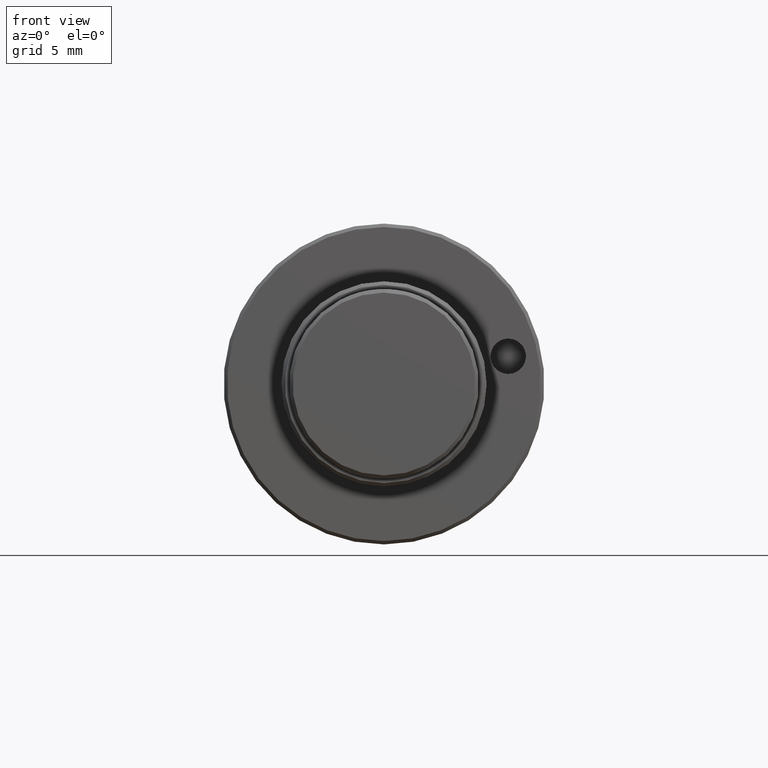
[diagram: clean part render]
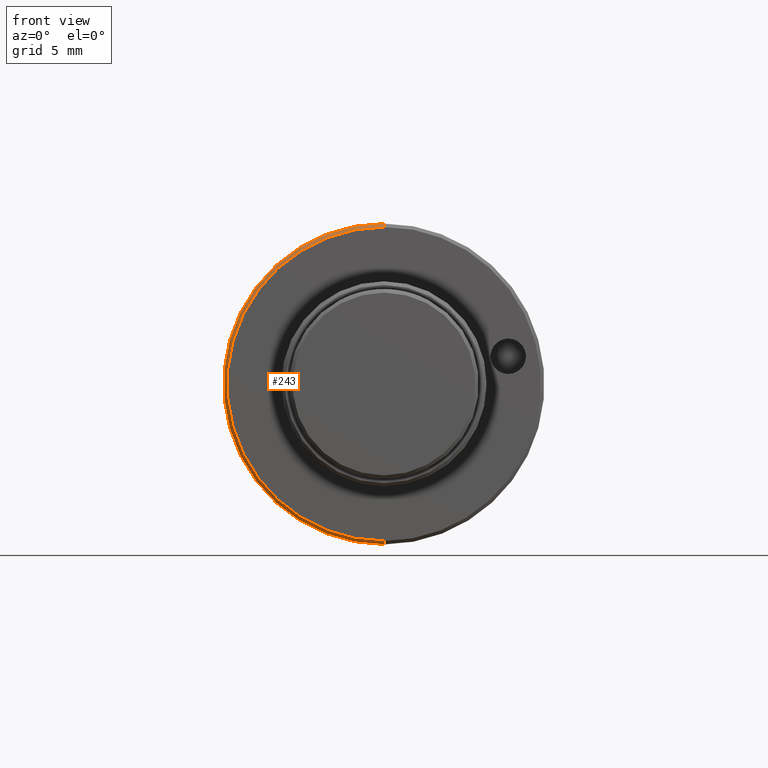
[diagram: same view with one face highlighted and labeled with its STEP entity id]
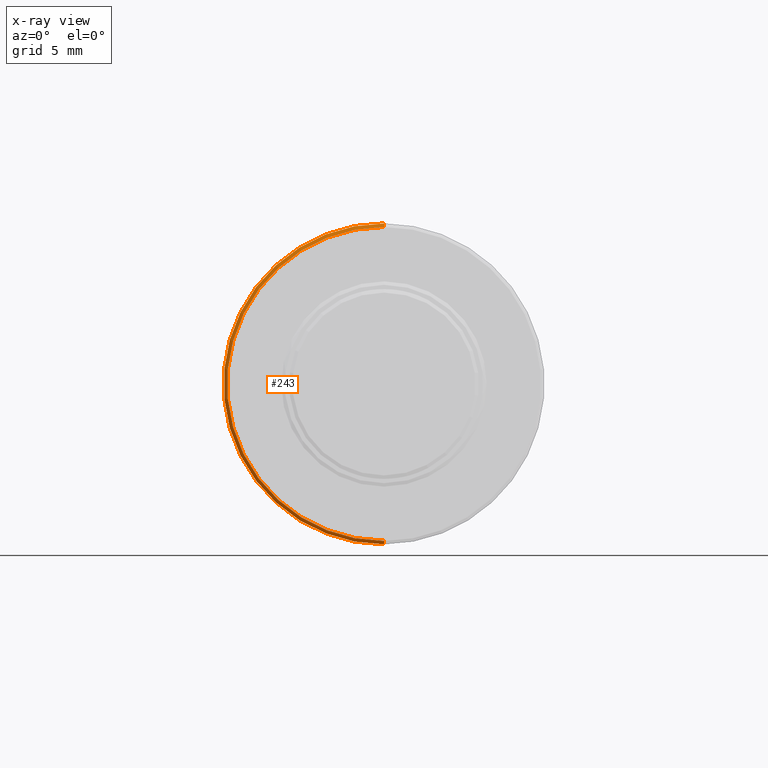
[diagram: x-ray of the same camera — body ghosted, the highlighted face saturated]
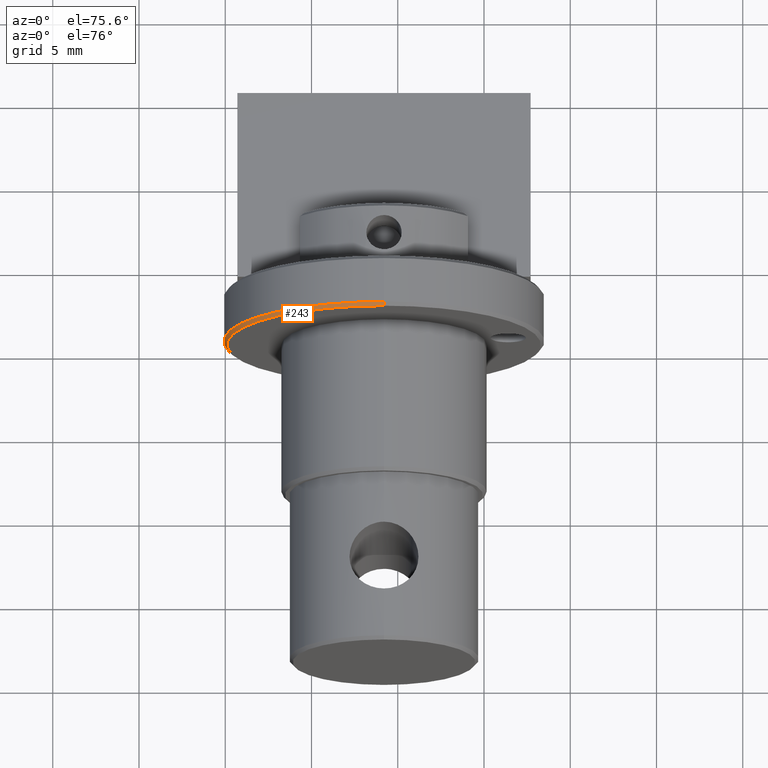
[diagram: same view with one face highlighted and labeled with its STEP entity id]
A machine part, front view. The second image highlights one B-rep face of the part: STEP entity #243.
The next image is the same camera in x-ray: the body ghosted, the highlighted face saturated — about 0% of this face is hidden behind the body in this view.
A second angle (auxiliary view) of the same face is appended — the face is thin or edge-on in the first view.
In plain terms, the highlighted conical surface has half-angle 45 deg.
Its self-contained STEP definition (entity closure, byte-faithful):
#86 = VERTEX_POINT ( 'NONE', #721 ) ;
#87 = VERTEX_POINT ( 'NONE', #720 ) ;
#146 = VERTEX_POINT ( 'NONE', #1056 ) ;
#147 = EDGE_CURVE ( 'NONE', #87, #149, #1055, .T. ) ;
#149 = VERTEX_POINT ( 'NONE', #1051 ) ;
#151 = EDGE_CURVE ( 'NONE', #86, #146, #1049, .T. ) ;
#233 = ORIENTED_EDGE ( 'NONE', *, *, #147, .F. ) ;
#234 = ORIENTED_EDGE ( 'NONE', *, *, #426, .F. ) ;
#235 = ORIENTED_EDGE ( 'NONE', *, *, #151, .T. ) ;
#236 = ORIENTED_EDGE ( 'NONE', *, *, #342, .F. ) ;
#242 = EDGE_LOOP ( 'NONE', ( #233, #234, #235, #236 ) ) ;
#243 = ADVANCED_FACE ( 'NONE', ( #1427 ), #1409, .T. ) ;
#342 = EDGE_CURVE ( 'NONE', #149, #146, #2032, .T. ) ;
#426 = EDGE_CURVE ( 'NONE', #86, #87, #1617, .T. ) ;
#720 = CARTESIAN_POINT ( 'NONE',  ( -5.796632573378700700, 3.305878560888230800, -8.287161105680846500 ) ) ;
#721 = CARTESIAN_POINT ( 'NONE',  ( -5.796632573378701600, 3.305878560888230800, 9.912838894319159900 ) ) ;
#1046 = DIRECTION ( 'NONE',  ( 0.0000000000000000000, 0.7071067811865474600, 0.7071067811865474600 ) ) ;
#1047 = VECTOR ( 'NONE', #1046, 1000.000000000000100 ) ;
#1048 = CARTESIAN_POINT ( 'NONE',  ( -5.796632573378701600, 3.505878560888227900, 10.11283889431915700 ) ) ;
#1049 = LINE ( 'NONE', #1048, #1047 ) ;
#1051 = CARTESIAN_POINT ( 'NONE',  ( -5.796632573378701600, 3.505878560888227900, -8.487161105680844000 ) ) ;
#1052 = DIRECTION ( 'NONE',  ( 8.659274570719354200E-017, 0.7071067811865474600, -0.7071067811865474600 ) ) ;
#1053 = VECTOR ( 'NONE', #1052, 1000.000000000000100 ) ;
#1054 = CARTESIAN_POINT ( 'NONE',  ( -5.796632573378700700, 3.505878560888227900, -8.487161105680844000 ) ) ;
#1055 = LINE ( 'NONE', #1054, #1053 ) ;
#1056 = CARTESIAN_POINT ( 'NONE',  ( -5.796632573378700700, 3.505878560888227900, 10.11283889431915700 ) ) ;
#1405 = DIRECTION ( 'NONE',  ( 0.0000000000000000000, 0.0000000000000000000, 1.000000000000000000 ) ) ;
#1406 = DIRECTION ( 'NONE',  ( -0.0000000000000000000, 1.000000000000000000, -0.0000000000000000000 ) ) ;
#1407 = CARTESIAN_POINT ( 'NONE',  ( -5.796632573378701600, 3.505878560888227900, 0.8128388943191566800 ) ) ;
#1408 = AXIS2_PLACEMENT_3D ( 'NONE', #1407, #1406, #1405 ) ;
#1409 = CONICAL_SURFACE ( 'NONE', #1408, 9.300000000000000700, 0.7853981633974482800 ) ;
#1427 = FACE_OUTER_BOUND ( 'NONE', #242, .T. ) ;
#1613 = DIRECTION ( 'NONE',  ( 0.0000000000000000000, 0.0000000000000000000, 1.000000000000000000 ) ) ;
#1614 = DIRECTION ( 'NONE',  ( -0.0000000000000000000, -1.000000000000000000, -0.0000000000000000000 ) ) ;
#1615 = CARTESIAN_POINT ( 'NONE',  ( -5.796632573378701600, 3.305878560888230800, 0.8128388943191566800 ) ) ;
#1616 = AXIS2_PLACEMENT_3D ( 'NONE', #1615, #1614, #1613 ) ;
#1617 = CIRCLE ( 'NONE', #1616, 9.100000000000003200 ) ;
#2028 = DIRECTION ( 'NONE',  ( 0.0000000000000000000, 0.0000000000000000000, 1.000000000000000000 ) ) ;
#2029 = DIRECTION ( 'NONE',  ( -0.0000000000000000000, 1.000000000000000000, -0.0000000000000000000 ) ) ;
#2030 = CARTESIAN_POINT ( 'NONE',  ( -5.796632573378701600, 3.505878560888227900, 0.8128388943191566800 ) ) ;
#2031 = AXIS2_PLACEMENT_3D ( 'NONE', #2030, #2029, #2028 ) ;
#2032 = CIRCLE ( 'NONE', #2031, 9.300000000000000700 ) ;